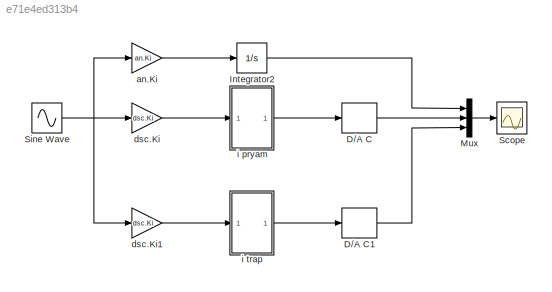
MODEL slx_e71e4ed313b4
KIND model
CONFIG AbsTol = auto
CONFIG EnableMultiTasking = off
CONFIG FixedStep = To/100
CONFIG MaxStep = auto
CONFIG MinStep = auto
CONFIG RelTol = 1e-3
CONFIG SampleTimeConstraint = Unconstrained
CONFIG SolverName = ode3
CONFIG StartTime = 0.0
CONFIG StopTime = Tmdl
BLOCK [ZeroOrderHold] D//A C
  SampleTime = To
BLOCK [ZeroOrderHold] D//A C1
  SampleTime = To
BLOCK [Integrator] Integrator2
BLOCK [Mux] Mux
  DisplayOption = bar
  Inputs = 3
BLOCK [Scope] Scope
  Floating = off
  NumInputPorts = 1
  ScopeSpecificationString = Simulink.scopes.TimeScopeBlockCfg('CurrentConfiguration', extmgr.ConfigurationSet(extmgr.Configuration('Core','General UI',true),extmgr.Configuration('Core','Source UI',true),extmgr.Configuration('Sources','WiredSimulink',true,'DataLoggingVariableName','y','DataLogging',true,'DataLoggingSaveFormat','Array'),extmgr.Configuration('Visuals','Time Domain',true,'SerializedDisplays',{struct('MinYLimReal...<+1392ch>
BLOCK [Sin] Sine Wave
  Frequency = 2*pi
  SampleTime = 0
BLOCK [Gain] an.Ki
  Gain = an.Ki
BLOCK [Gain] dsc.Ki
  Gain = dsc.Ki
BLOCK [Gain] dsc.Ki1
  Gain = dsc.Ki
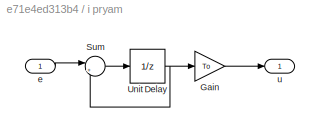
BLOCK [SubSystem] i pryam
BLOCK [Gain] i pryam/Gain
  Gain = To
BLOCK [Sum] i pryam/Sum
  Inputs = |++
BLOCK [UnitDelay] i pryam/Unit Delay
  HasFrameUpgradeWarning = on
  SampleTime = To
BLOCK [Inport] i pryam/e
BLOCK [Outport] i pryam/u
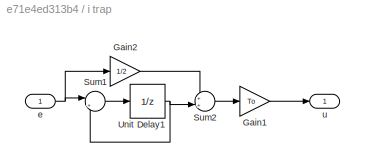
BLOCK [SubSystem] i trap
BLOCK [Gain] i trap/Gain1
  Gain = To
BLOCK [Gain] i trap/Gain2
  Gain = 1/2
BLOCK [Sum] i trap/Sum1
  Inputs = |++
BLOCK [Sum] i trap/Sum2
  Inputs = ++|
BLOCK [UnitDelay] i trap/Unit Delay1
  HasFrameUpgradeWarning = on
  SampleTime = To
BLOCK [Inport] i trap/e
BLOCK [Outport] i trap/u
LINE D//A C1:1 -> Mux:3
LINE D//A C:1 -> Mux:2
LINE Integrator2:1 -> Mux:1
LINE Mux:1 -> Scope:1
NET Sine Wave:1 -> an.Ki:1, dsc.Ki1:1, dsc.Ki:1
LINE an.Ki:1 -> Integrator2:1
LINE dsc.Ki1:1 -> i trap:1
LINE dsc.Ki:1 -> i pryam:1
LINE i pryam/Gain:1 -> i pryam/u:1
LINE i pryam/Sum:1 -> i pryam/Unit Delay:1
NET i pryam/Unit Delay:1 -> i pryam/Gain:1, i pryam/Sum:2
LINE i pryam/e:1 -> i pryam/Sum:1
LINE i pryam:1 -> D//A C:1
LINE i trap/Gain1:1 -> i trap/u:1
LINE i trap/Gain2:1 -> i trap/Sum2:1
LINE i trap/Sum1:1 -> i trap/Unit Delay1:1
LINE i trap/Sum2:1 -> i trap/Gain1:1
NET i trap/Unit Delay1:1 -> i trap/Sum1:2, i trap/Sum2:2
NET i trap/e:1 -> i trap/Gain2:1, i trap/Sum1:1
LINE i trap:1 -> D//A C1:1
note: NET lines group one-source signal fan-out (src -> all destinations, sorted); 1:1 wires keep LINE
